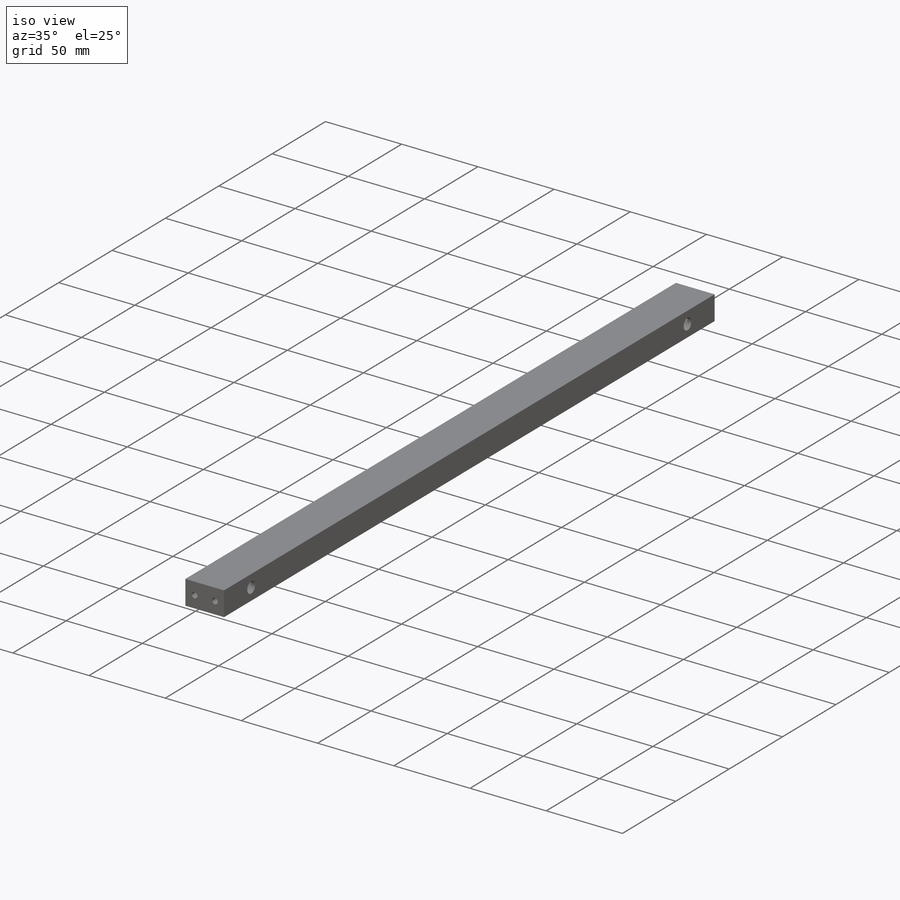
[diagram: iso view]
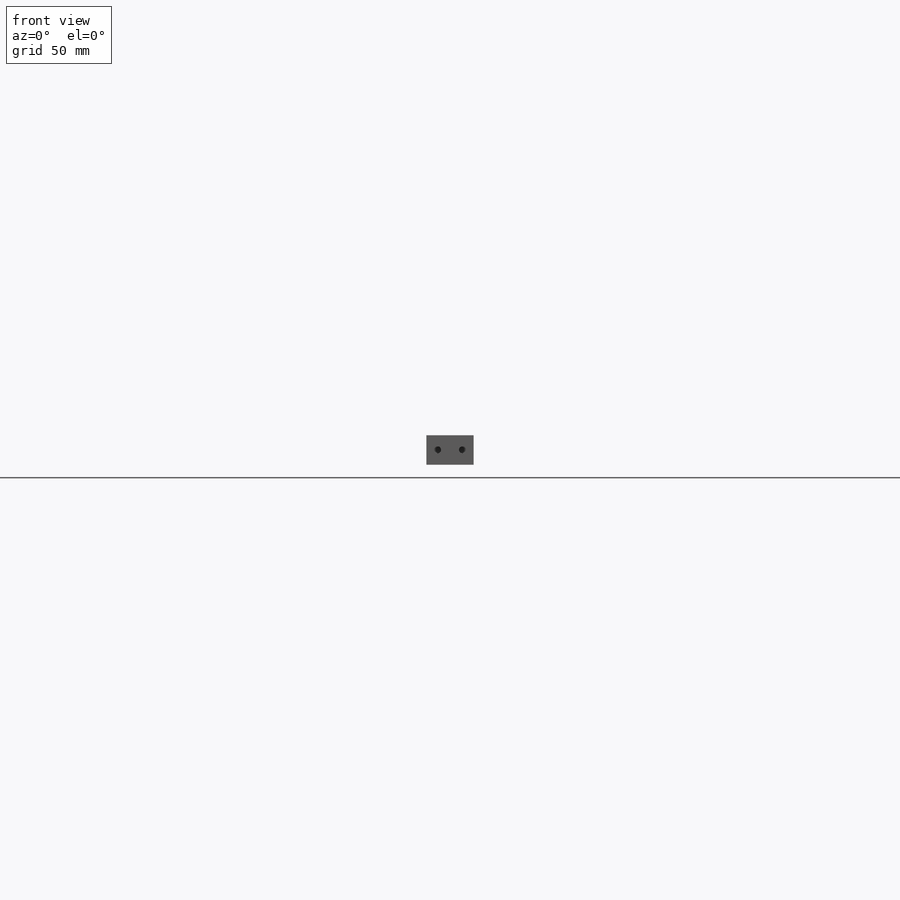
[diagram: front view]
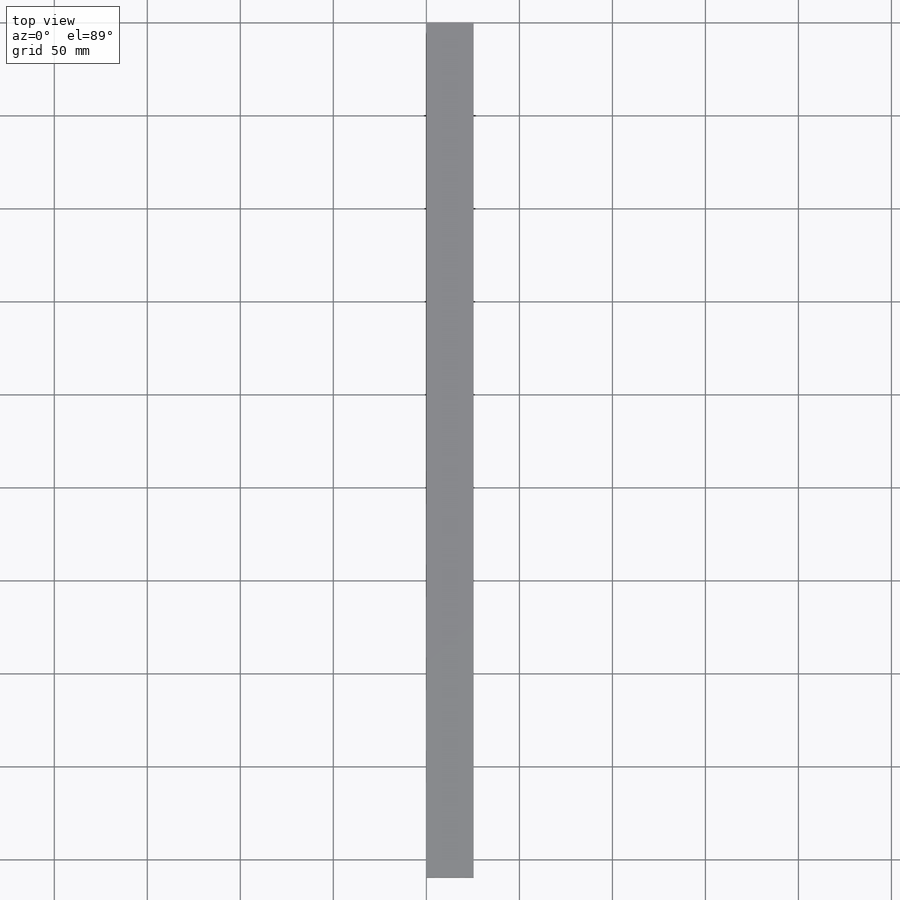
[diagram: top view]
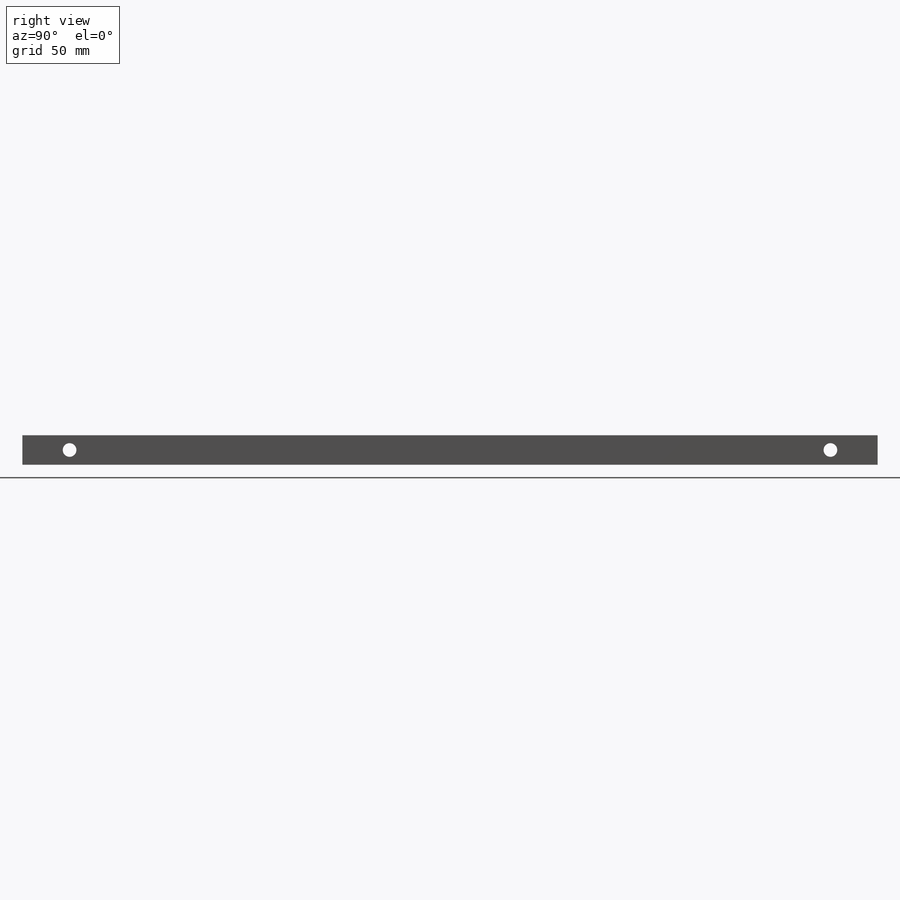
[diagram: right view]
SOLIDWORKS PART (.sldprt)
format: sldprt  version: not decoded by parser v0  size: 231,424 bytes
history: native  units: mm
features: sketch x8, hole x3, material x1, extrude x1, cut_extrude x1 (+13 scaffold rows collapsed)
feature tree (27):
  scaffold x13  (default folders/planes/origin — collapsed)
  material  "Material <not specified>"
  sketch  "Sketch1"  dims[D1=25.4mm D2=15.875mm]
  extrude  "Boss-Extrude1"  Depth=459.74mm
  sketch  "Sketch8"  dims[D1=25.4mm D2=28.575mm]
  cut_extrude  "Cut-Extrude1"  Depth=22.61362mm
  hole  "L (0.29) Diameter Hole1"  Diameter=7.366mm Depth=50.8mm
  sketch  "Sketch10"
  sketch  "Sketch9"  dims[hole-wizard template sketch: 50 standard entries collapsed; hole parameters above]
  hole  "Tap Drill for #10-24 Tap2"  Diameter=3.7973mm Depth=20.701mm
  sketch  "Sketch15"  dims[D1=6.0mm D2=6.0mm]
  sketch  "Sketch16"  dims[Hole Dia.=3.7973mm Hole Depth=20.701mm Drill Angle=118.0deg]
  hole  "Tap Drill for #10-24 Tap1"  Diameter=3.7973mm Depth=20.701mm
  sketch  "Sketch20"  dims[D1=6.0mm D2=6.0mm]
  sketch  "Sketch19"  dims[hole-wizard template sketch: 47 standard entries collapsed; hole parameters kept: c15.Hole Depth=20.701mm c15.D3=~14.816244mm c15.Drill Angle=118.0deg]
decode coverage: 12 of 13 modeling features carry decoded parameters
note: ~ marks probable driven/reference dimensions
note: suppression state not decoded; provenance and decode notes live in map.json
